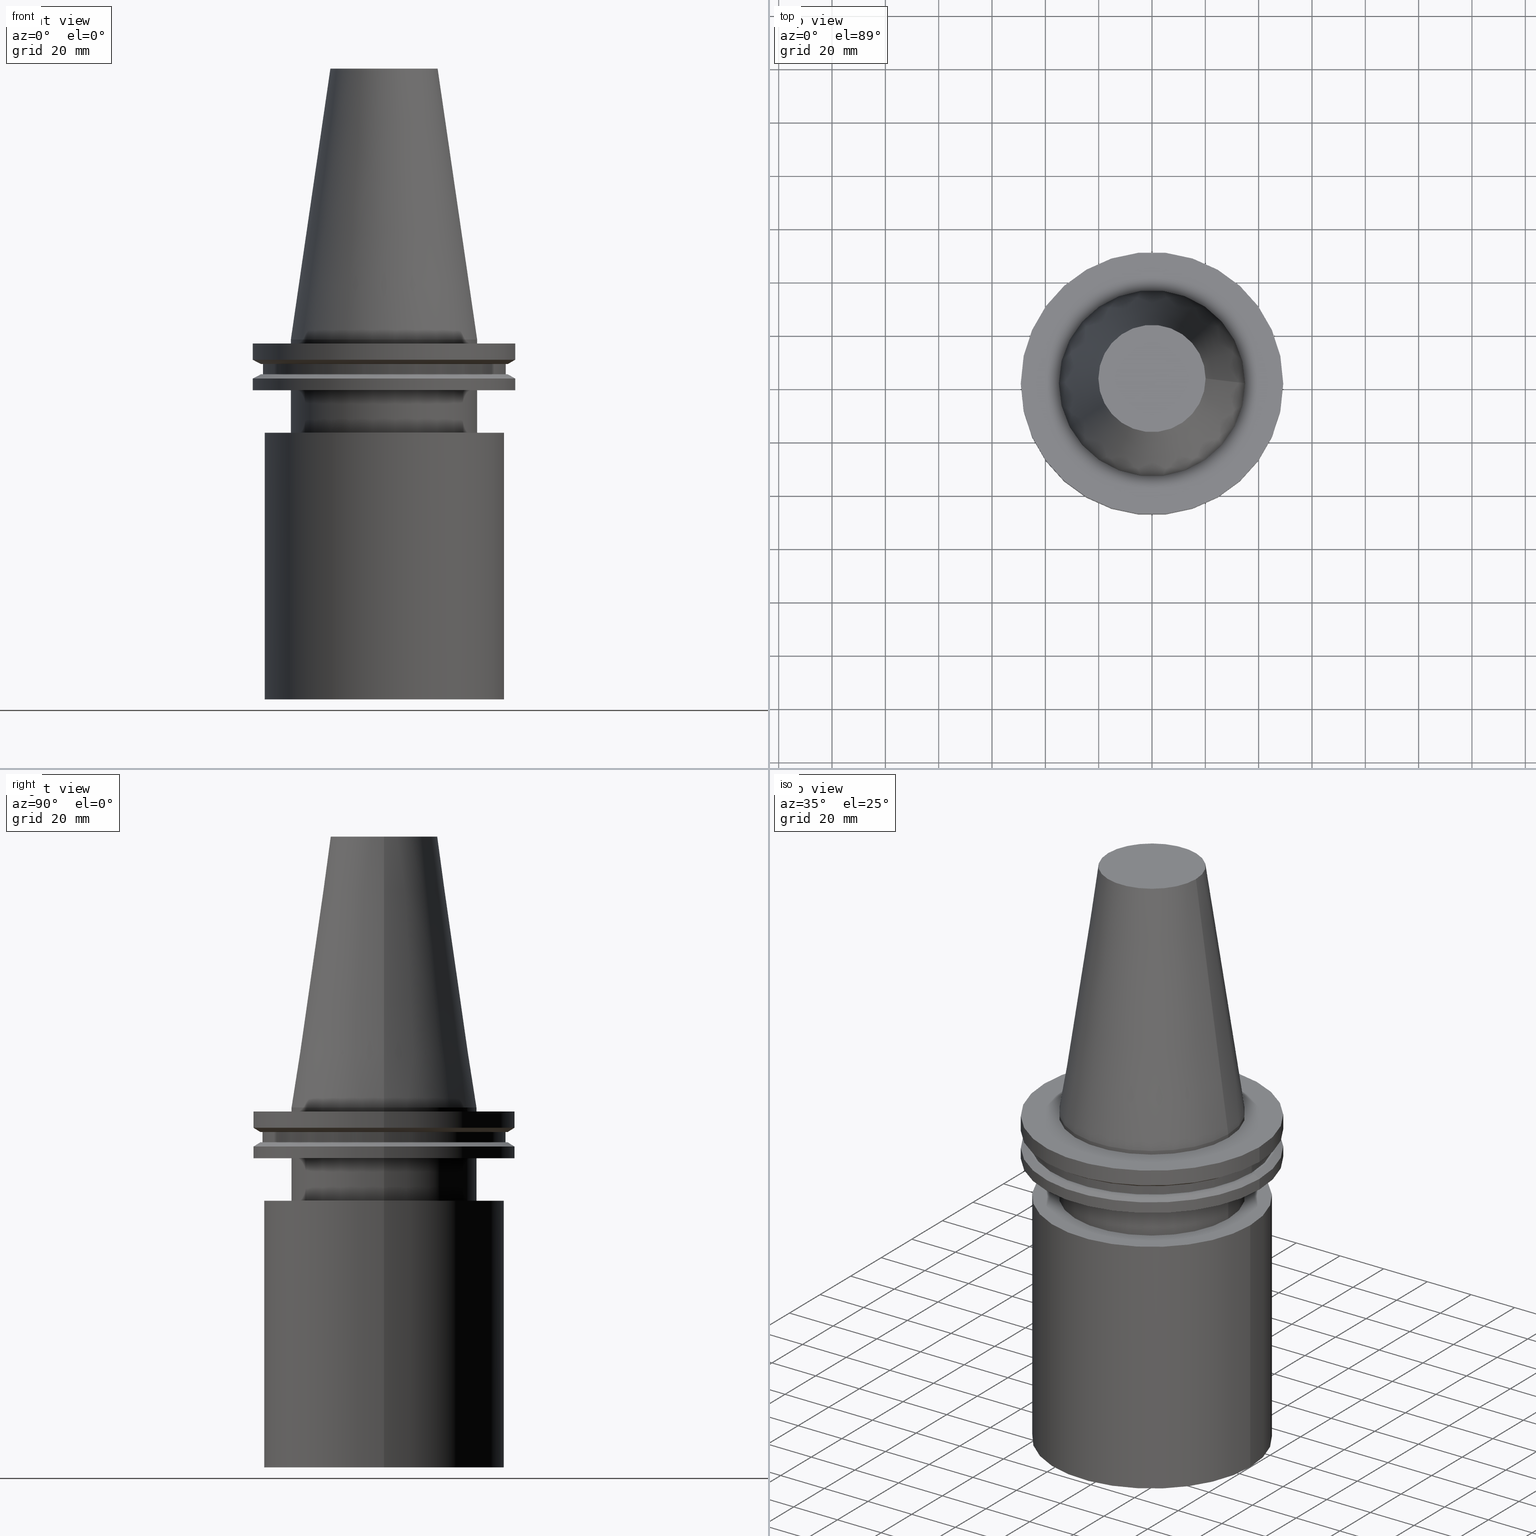
[diagram: canonical four-view strip — front | top / right | iso, engineering-drawing reading convention]
A machine part, canonical four-view strip (front | top / right | iso — engineering-drawing reading convention). The complete STEP part file that produces these views, byte-faithful:
ISO-10303-21;
HEADER;
FILE_DESCRIPTION (( 'STEP AP203' ),
    '1' );
FILE_NAME ('11.326.675.stp',
    '2022-03-09T15:00:51',
    ( '' ),
    ( '' ),
    'SwSTEP 2.0',
    'SolidWorks 2021',
    '' );
FILE_SCHEMA (( 'CONFIG_CONTROL_DESIGN' ));
ENDSEC;

DATA;
#1 = CC_DESIGN_DATE_AND_TIME_ASSIGNMENT ( #344, #96, ( #55 ) ) ;
#2 = ORIENTED_EDGE ( 'NONE', *, *, #246, .F. ) ;
#3 = DIRECTION ( 'NONE',  ( 1.000000000000000000, 0.000000000000000000, 0.000000000000000000 ) ) ;
#4 = DIRECTION ( 'NONE',  ( 0.000000000000000000, 0.000000000000000000, -1.000000000000000000 ) ) ;
#5 = CONICAL_SURFACE ( 'NONE', #349, 34.92499999999999005, 0.1448138465474119452 ) ;
#6 = EDGE_CURVE ( 'NONE', #244, #244, #147, .T. ) ;
#7 = FACE_OUTER_BOUND ( 'NONE', #206, .T. ) ;
#8 = ORIENTED_EDGE ( 'NONE', *, *, #92, .T. ) ;
#9 = DIRECTION ( 'NONE',  ( 1.000000000000000000, 0.000000000000000000, 0.000000000000000000 ) ) ;
#10 = DIRECTION ( 'NONE',  ( -0.000000000000000000, -0.000000000000000000, 1.000000000000000000 ) ) ;
#11 = DIRECTION ( 'NONE',  ( 0.000000000000000000, 0.000000000000000000, -1.000000000000000000 ) ) ;
#12 = DIRECTION ( 'NONE',  ( 1.000000000000000000, 0.000000000000000000, 0.000000000000000000 ) ) ;
#13 = DIRECTION ( 'NONE',  ( -1.000000000000000000, 0.000000000000000000, -0.000000000000000000 ) ) ;
#14 = EDGE_LOOP ( 'NONE', ( #22 ) ) ;
#15 = CARTESIAN_POINT ( 'NONE',  ( 0.000000000000000000, 0.000000000000000000, -1.499999999999987566 ) ) ;
#16 = ORIENTED_EDGE ( 'NONE', *, *, #92, .F. ) ;
#17 = AXIS2_PLACEMENT_3D ( 'NONE', #118, #212, #82 ) ;
#18 = CARTESIAN_POINT ( 'NONE',  ( 0.000000000000000000, 0.000000000000000000, -19.04999999999999716 ) ) ;
#19 = ORIENTED_EDGE ( 'NONE', *, *, #173, .T. ) ;
#20 = APPLICATION_CONTEXT ( 'configuration controlled 3d designs of mechanical parts and assemblies' ) ;
#21 = CARTESIAN_POINT ( 'NONE',  ( 20.10819343178871321, 0.000000000000000000, 101.5999999999999801 ) ) ;
#22 = ORIENTED_EDGE ( 'NONE', *, *, #38, .F. ) ;
#23 = VERTEX_POINT ( 'NONE', #391 ) ;
#24 = PERSON ( 'UNSPECIFIED', 'UNSPECIFIED', 'UNSPECIFIED', ('UNSPECIFIED'), ('UNSPECIFIED'), ('UNSPECIFIED') ) ;
#25 = ADVANCED_FACE ( 'NONE', ( #306, #249 ), #5, .T. ) ;
#26 = AXIS2_PLACEMENT_3D ( 'NONE', #15, #271, #115 ) ;
#27 = CARTESIAN_POINT ( 'NONE',  ( 45.64500000000000313, 0.000000000000000000, -13.05499999999999794 ) ) ;
#28 = CARTESIAN_POINT ( 'NONE',  ( 34.92499999999999716, 0.000000000000000000, -35.00000000000000000 ) ) ;
#29 = PLANE ( 'NONE',  #71 ) ;
#30 = VERTEX_POINT ( 'NONE', #280 ) ;
#31 = AXIS2_PLACEMENT_3D ( 'NONE', #313, #34, #389 ) ;
#32 = PRODUCT_DEFINITION_FORMATION_WITH_SPECIFIED_SOURCE ( 'ANY', '', #378, .NOT_KNOWN. ) ;
#33 = CC_DESIGN_PERSON_AND_ORGANIZATION_ASSIGNMENT ( #159, #231, ( #55 ) ) ;
#34 = DIRECTION ( 'NONE',  ( 0.000000000000000000, -0.000000000000000000, 1.000000000000000000 ) ) ;
#35 = ORIENTED_EDGE ( 'NONE', *, *, #6, .F. ) ;
#36 = APPROVAL_ROLE ( '' ) ;
#37 = FACE_OUTER_BOUND ( 'NONE', #301, .T. ) ;
#38 = EDGE_CURVE ( 'NONE', #305, #305, #106, .T. ) ;
#39 = FACE_OUTER_BOUND ( 'NONE', #245, .T. ) ;
#40 = CIRCLE ( 'NONE', #368, 49.21500000000000341 ) ;
#41 = DIRECTION ( 'NONE',  ( 1.000000000000000000, 0.000000000000000000, 0.000000000000000000 ) ) ;
#42 = CARTESIAN_POINT ( 'NONE',  ( 0.000000000000000000, 0.000000000000000000, -13.05499999999999794 ) ) ;
#43 = ORIENTED_EDGE ( 'NONE', *, *, #366, .T. ) ;
#44 = DIRECTION ( 'NONE',  ( -0.000000000000000000, -0.000000000000000000, 1.000000000000000000 ) ) ;
#45 = DIRECTION ( 'NONE',  ( 0.000000000000000000, 0.000000000000000000, -1.000000000000000000 ) ) ;
#46 = CIRCLE ( 'NONE', #194, 45.64500000000000313 ) ;
#47 = ORGANIZATION ( 'UNSPECIFIED', 'UNSPECIFIED', '' ) ;
#48 = CARTESIAN_POINT ( 'NONE',  ( 0.000000000000000000, 0.000000000000000000, 101.5999999999999943 ) ) ;
#49 = ORIENTED_EDGE ( 'NONE', *, *, #153, .T. ) ;
#50 = FACE_OUTER_BOUND ( 'NONE', #120, .T. ) ;
#51 = EDGE_LOOP ( 'NONE', ( #117 ) ) ;
#52 = EDGE_CURVE ( 'NONE', #238, #238, #40, .T. ) ;
#53 = FACE_OUTER_BOUND ( 'NONE', #150, .T. ) ;
#54 = EDGE_LOOP ( 'NONE', ( #177 ) ) ;
#55 = SECURITY_CLASSIFICATION ( '', '', #315 ) ;
#56 = CARTESIAN_POINT ( 'NONE',  ( 45.64500000000000313, 0.000000000000000000, -9.204999999999991189 ) ) ;
#57 = CARTESIAN_POINT ( 'NONE',  ( 0.000000000000000000, 0.000000000000000000, 0.000000000000000000 ) ) ;
#58 = ADVANCED_FACE ( 'NONE', ( #141, #384 ), #29, .F. ) ;
#59 = VERTEX_POINT ( 'NONE', #278 ) ;
#60 = AXIS2_PLACEMENT_3D ( 'NONE', #160, #372, #9 ) ;
#61 = EDGE_LOOP ( 'NONE', ( #217 ) ) ;
#62 = PERSON_AND_ORGANIZATION ( #24, #47 ) ;
#63 = DIRECTION ( 'NONE',  ( 1.000000000000000000, 0.000000000000000000, 0.000000000000000000 ) ) ;
#64 = AXIS2_PLACEMENT_3D ( 'NONE', #48, #300, #297 ) ;
#65 = FACE_OUTER_BOUND ( 'NONE', #116, .T. ) ;
#66 = APPROVAL_STATUS ( 'not_yet_approved' ) ;
#67 = CARTESIAN_POINT ( 'NONE',  ( 0.000000000000000000, 0.000000000000000000, -19.04999999999999716 ) ) ;
#68 = ADVANCED_FACE ( 'NONE', ( #377, #343 ), #243, .T. ) ;
#69 = CYLINDRICAL_SURFACE ( 'NONE', #283, 34.92499999999999716 ) ;
#70 = CYLINDRICAL_SURFACE ( 'NONE', #386, 45.00000000000000000 ) ;
#71 = AXIS2_PLACEMENT_3D ( 'NONE', #167, #285, #94 ) ;
#72 = PRODUCT_DEFINITION_SHAPE ( 'NONE', 'NONE',  #299 ) ;
#73 = PLANE ( 'NONE',  #77 ) ;
#74 = CC_DESIGN_DATE_AND_TIME_ASSIGNMENT ( #88, #310, ( #299 ) ) ;
#75 = CARTESIAN_POINT ( 'NONE',  ( 0.000000000000000000, 46.43919780457007818, -9.204999999999998295 ) ) ;
#76 = CARTESIAN_POINT ( 'NONE',  ( 0.000000000000000000, 0.000000000000000000, 101.5999999999999943 ) ) ;
#77 = AXIS2_PLACEMENT_3D ( 'NONE', #232, #322, #3 ) ;
#78 = APPROVAL_PERSON_ORGANIZATION ( #364, #282, #221 ) ;
#79 = FACE_OUTER_BOUND ( 'NONE', #143, .T. ) ;
#80 = ORIENTED_EDGE ( 'NONE', *, *, #321, .T. ) ;
#81 = ORIENTED_EDGE ( 'NONE', *, *, #38, .T. ) ;
#82 = DIRECTION ( 'NONE',  ( 1.000000000000000000, 0.000000000000000000, 0.000000000000000000 ) ) ;
#83 = EDGE_LOOP ( 'NONE', ( #193 ) ) ;
#84 = FACE_BOUND ( 'NONE', #83, .T. ) ;
#85 = EDGE_LOOP ( 'NONE', ( #134 ) ) ;
#86 = ORIENTED_EDGE ( 'NONE', *, *, #214, .F. ) ;
#87 = AXIS2_PLACEMENT_3D ( 'NONE', #75, #145, #356 ) ;
#88 = DATE_AND_TIME ( #192, #100 ) ;
#89 = APPROVAL_STATUS ( 'not_yet_approved' ) ;
#90 = CIRCLE ( 'NONE', #218, 34.92499999999999716 ) ;
#91 = APPLICATION_PROTOCOL_DEFINITION ( 'international standard', 'config_control_design', 1994, #95 ) ;
#92 = EDGE_CURVE ( 'NONE', #204, #204, #90, .T. ) ;
#93 = APPLICATION_PROTOCOL_DEFINITION ( 'international standard', 'config_control_design', 1994, #20 ) ;
#94 = DIRECTION ( 'NONE',  ( -1.000000000000000000, 0.000000000000000000, -0.000000000000000000 ) ) ;
#95 = APPLICATION_CONTEXT ( 'configuration controlled 3d designs of mechanical parts and assemblies' ) ;
#96 = DATE_TIME_ROLE ( 'classification_date' ) ;
#97 = CIRCLE ( 'NONE', #17, 46.43919780457007818 ) ;
#98 = EDGE_CURVE ( 'NONE', #338, #338, #279, .T. ) ;
#99 = DIRECTION ( 'NONE',  ( 1.000000000000000000, 0.000000000000000000, 0.000000000000000000 ) ) ;
#100 = LOCAL_TIME ( 9, 0, 51.00000000000000000, #341 ) ;
#101 = CARTESIAN_POINT ( 'NONE',  ( 0.000000000000000000, 0.000000000000000000, 101.5999999999999943 ) ) ;
#102 = PERSON_AND_ORGANIZATION ( #24, #47 ) ;
#103 = DIRECTION ( 'NONE',  ( 1.000000000000000000, 0.000000000000000000, 0.000000000000000000 ) ) ;
#104 = COORDINATED_UNIVERSAL_TIME_OFFSET ( 6, 0, .BEHIND. ) ;
#105 = DIRECTION ( 'NONE',  ( -0.000000000000000000, -0.000000000000000000, 1.000000000000000000 ) ) ;
#106 = CIRCLE ( 'NONE', #181, 20.10819343178871321 ) ;
#107 = EDGE_LOOP ( 'NONE', ( #8 ) ) ;
#108 = ADVANCED_FACE ( 'NONE', ( #203, #292 ), #138, .T. ) ;
#109 = DIRECTION ( 'NONE',  ( -0.000000000000000000, -0.000000000000000000, 1.000000000000000000 ) ) ;
#110 = DIRECTION ( 'NONE',  ( -1.000000000000000000, 0.000000000000000000, -0.000000000000000000 ) ) ;
#111 = EDGE_LOOP ( 'NONE', ( #185 ) ) ;
#112 = DIRECTION ( 'NONE',  ( -0.000000000000000000, -0.000000000000000000, 1.000000000000000000 ) ) ;
#113 = APPROVAL_PERSON_ORGANIZATION ( #200, #336, #234 ) ;
#114 = ADVANCED_FACE ( 'NONE', ( #290, #37 ), #131, .F. ) ;
#115 = DIRECTION ( 'NONE',  ( 1.000000000000000000, 0.000000000000000000, 0.000000000000000000 ) ) ;
#116 = EDGE_LOOP ( 'NONE', ( #296 ) ) ;
#117 = ORIENTED_EDGE ( 'NONE', *, *, #277, .T. ) ;
#118 = CARTESIAN_POINT ( 'NONE',  ( 0.000000000000000000, 0.000000000000000000, -9.204999999999991189 ) ) ;
#119 = DIRECTION ( 'NONE',  ( 1.000000000000000000, 0.000000000000000000, 0.000000000000000000 ) ) ;
#120 = EDGE_LOOP ( 'NONE', ( #272 ) ) ;
#121 = VERTEX_POINT ( 'NONE', #225 ) ;
#122 = DIRECTION ( 'NONE',  ( 1.000000000000000000, 0.000000000000000000, 0.000000000000000000 ) ) ;
#123 = MECHANICAL_CONTEXT ( 'NONE', #20, 'mechanical' ) ;
#124 = ADVANCED_FACE ( 'NONE', ( #136 ), #73, .F. ) ;
#125 = CLOSED_SHELL ( 'NONE', ( #25, #294, #137, #199, #108, #166, #205, #353, #314, #68, #254, #58, #382, #114, #189, #124 ) ) ;
#126 = AXIS2_PLACEMENT_3D ( 'NONE', #303, #44, #381 ) ;
#127 = EDGE_CURVE ( 'NONE', #59, #59, #325, .T. ) ;
#128 = DIRECTION ( 'NONE',  ( -0.000000000000000000, -0.000000000000000000, 1.000000000000000000 ) ) ;
#129 = SHAPE_DEFINITION_REPRESENTATION ( #72, #196 ) ;
#130 = AXIS2_PLACEMENT_3D ( 'NONE', #201, #379, #345 ) ;
#131 = PLANE ( 'NONE',  #130 ) ;
#132 = DATE_AND_TIME ( #260, #334 ) ;
#133 = DIRECTION ( 'NONE',  ( -1.000000000000000000, 0.000000000000000000, 0.000000000000000000 ) ) ;
#134 = ORIENTED_EDGE ( 'NONE', *, *, #98, .F. ) ;
#135 = DATE_AND_TIME ( #165, #318 ) ;
#136 = FACE_OUTER_BOUND ( 'NONE', #61, .T. ) ;
#137 = ADVANCED_FACE ( 'NONE', ( #7, #198 ), #69, .T. ) ;
#138 = CYLINDRICAL_SURFACE ( 'NONE', #289, 49.21499999999998920 ) ;
#139 = LOCAL_TIME ( 9, 0, 51.00000000000000000, #224 ) ;
#140 = DIRECTION ( 'NONE',  ( 0.000000000000000000, 0.000000000000000000, -1.000000000000000000 ) ) ;
#141 = FACE_BOUND ( 'NONE', #111, .T. ) ;
#142 = DIRECTION ( 'NONE',  ( -0.000000000000000000, -0.000000000000000000, 1.000000000000000000 ) ) ;
#143 = EDGE_LOOP ( 'NONE', ( #179 ) ) ;
#144 = EDGE_LOOP ( 'NONE', ( #211 ) ) ;
#145 = DIRECTION ( 'NONE',  ( 0.000000000000000000, -0.000000000000000000, 1.000000000000000000 ) ) ;
#146 = EDGE_LOOP ( 'NONE', ( #35 ) ) ;
#147 = CIRCLE ( 'NONE', #259, 45.64500000000000313 ) ;
#148 = DIRECTION ( 'NONE',  ( 1.000000000000000000, 0.000000000000000000, 0.000000000000000000 ) ) ;
#149 = EDGE_LOOP ( 'NONE', ( #291 ) ) ;
#150 = EDGE_LOOP ( 'NONE', ( #19 ) ) ;
#151 = CARTESIAN_POINT ( 'NONE',  ( 0.000000000000000000, 0.000000000000000000, -35.00000000000000000 ) ) ;
#152 = DIRECTION ( 'NONE',  ( -1.000000000000000000, 0.000000000000000000, 0.000000000000000000 ) ) ;
#153 = EDGE_CURVE ( 'NONE', #23, #23, #355, .T. ) ;
#154 =( NAMED_UNIT ( * ) SI_UNIT ( $, .STERADIAN. ) SOLID_ANGLE_UNIT ( ) );
#155 = AXIS2_PLACEMENT_3D ( 'NONE', #358, #140, #13 ) ;
#156 = DATE_AND_TIME ( #309, #139 ) ;
#157 = PRODUCT_RELATED_PRODUCT_CATEGORY ( 'detail', '', ( #378 ) ) ;
#158 = CIRCLE ( 'NONE', #162, 46.43919780457007818 ) ;
#159 = PERSON_AND_ORGANIZATION ( #24, #47 ) ;
#160 = CARTESIAN_POINT ( 'NONE',  ( 0.000000000000000000, 0.000000000000000000, -135.0000000000000000 ) ) ;
#161 = CC_DESIGN_APPROVAL ( #336, ( #55 ) ) ;
#162 = AXIS2_PLACEMENT_3D ( 'NONE', #42, #262, #103 ) ;
#163 = DIRECTION ( 'NONE',  ( -0.000000000000000000, -0.000000000000000000, 1.000000000000000000 ) ) ;
#164 = EDGE_LOOP ( 'NONE', ( #268 ) ) ;
#165 = CALENDAR_DATE ( 2022, 9, 3 ) ;
#166 = ADVANCED_FACE ( 'NONE', ( #230, #39 ), #188, .T. ) ;
#167 = CARTESIAN_POINT ( 'NONE',  ( 0.000000000000000000, 49.21499999999999631, -1.499999999999992895 ) ) ;
#168 = MANIFOLD_SOLID_BREP ( 'CKB', #125 ) ;
#169 = DIRECTION ( 'NONE',  ( -0.000000000000000000, -0.000000000000000000, 1.000000000000000000 ) ) ;
#170 = CC_DESIGN_SECURITY_CLASSIFICATION ( #55, ( #32 ) ) ;
#171 = DIRECTION ( 'NONE',  ( 1.000000000000000000, 0.000000000000000000, 0.000000000000000000 ) ) ;
#172 = ORIENTED_EDGE ( 'NONE', *, *, #6, .T. ) ;
#173 = EDGE_CURVE ( 'NONE', #337, #337, #158, .T. ) ;
#174 = CYLINDRICAL_SURFACE ( 'NONE', #361, 45.64500000000000313 ) ;
#175 = EDGE_LOOP ( 'NONE', ( #180 ) ) ;
#176 = FACE_OUTER_BOUND ( 'NONE', #146, .T. ) ;
#177 = ORIENTED_EDGE ( 'NONE', *, *, #226, .T. ) ;
#178 = CARTESIAN_POINT ( 'NONE',  ( 0.000000000000000000, 0.000000000000000000, -1.499999999999987566 ) ) ;
#179 = ORIENTED_EDGE ( 'NONE', *, *, #394, .T. ) ;
#180 = ORIENTED_EDGE ( 'NONE', *, *, #52, .F. ) ;
#181 = AXIS2_PLACEMENT_3D ( 'NONE', #276, #392, #122 ) ;
#182 = APPROVAL_PERSON_ORGANIZATION ( #335, #233, #36 ) ;
#183 = DIRECTION ( 'NONE',  ( 1.000000000000000000, 0.000000000000000000, 0.000000000000000000 ) ) ;
#184 = CC_DESIGN_PERSON_AND_ORGANIZATION_ASSIGNMENT ( #374, #236, ( #32 ) ) ;
#185 = ORIENTED_EDGE ( 'NONE', *, *, #394, .F. ) ;
#186 = PERSON_AND_ORGANIZATION_ROLE ( 'design_owner' ) ;
#187 = VERTEX_POINT ( 'NONE', #250 ) ;
#188 = CONICAL_SURFACE ( 'NONE', #339, 49.21499999999998920, 1.047197551196554333 ) ;
#189 = ADVANCED_FACE ( 'NONE', ( #235, #348 ), #70, .T. ) ;
#190 = VERTEX_POINT ( 'NONE', #369 ) ;
#191 = PERSON_AND_ORGANIZATION_ROLE ( 'creator' ) ;
#192 = CALENDAR_DATE ( 2022, 9, 3 ) ;
#193 = ORIENTED_EDGE ( 'NONE', *, *, #366, .F. ) ;
#194 = AXIS2_PLACEMENT_3D ( 'NONE', #269, #142, #148 ) ;
#195 = PLANE ( 'NONE',  #31 ) ;
#196 = ADVANCED_BREP_SHAPE_REPRESENTATION ( '11.326.675', ( #168, #219 ), #229 ) ;
#197 = DIRECTION ( 'NONE',  ( -0.000000000000000000, -0.000000000000000000, 1.000000000000000000 ) ) ;
#198 = FACE_OUTER_BOUND ( 'NONE', #388, .T. ) ;
#199 = ADVANCED_FACE ( 'NONE', ( #65, #293 ), #195, .F. ) ;
#200 = PERSON_AND_ORGANIZATION ( #24, #47 ) ;
#201 = CARTESIAN_POINT ( 'NONE',  ( 0.000000000000000000, 0.000000000000000000, -35.00000000000000000 ) ) ;
#202 = COORDINATED_UNIVERSAL_TIME_OFFSET ( 6, 0, .BEHIND. ) ;
#203 = FACE_OUTER_BOUND ( 'NONE', #324, .T. ) ;
#204 = VERTEX_POINT ( 'NONE', #307 ) ;
#205 = ADVANCED_FACE ( 'NONE', ( #84, #53 ), #295, .F. ) ;
#206 = EDGE_LOOP ( 'NONE', ( #16 ) ) ;
#207 = DIRECTION ( 'NONE',  ( 1.000000000000000000, 0.000000000000000000, 0.000000000000000000 ) ) ;
#208 = CIRCLE ( 'NONE', #126, 34.92499999999999005 ) ;
#209 = EDGE_LOOP ( 'NONE', ( #43 ) ) ;
#210 = FACE_OUTER_BOUND ( 'NONE', #240, .T. ) ;
#211 = ORIENTED_EDGE ( 'NONE', *, *, #52, .T. ) ;
#212 = DIRECTION ( 'NONE',  ( -0.000000000000000000, -0.000000000000000000, 1.000000000000000000 ) ) ;
#213 = EDGE_LOOP ( 'NONE', ( #241 ) ) ;
#214 = EDGE_CURVE ( 'NONE', #30, #30, #380, .T. ) ;
#215 = CYLINDRICAL_SURFACE ( 'NONE', #304, 49.21499999999999631 ) ;
#216 = EDGE_LOOP ( 'NONE', ( #2 ) ) ;
#217 = ORIENTED_EDGE ( 'NONE', *, *, #127, .F. ) ;
#218 = AXIS2_PLACEMENT_3D ( 'NONE', #67, #128, #350 ) ;
#219 = AXIS2_PLACEMENT_3D ( 'NONE', #220, #365, #63 ) ;
#220 = CARTESIAN_POINT ( 'NONE',  ( 0.000000000000000000, 0.000000000000000000, 0.000000000000000000 ) ) ;
#221 = APPROVAL_ROLE ( '' ) ;
#222 = LOCAL_TIME ( 9, 0, 51.00000000000000000, #202 ) ;
#223 = AXIS2_PLACEMENT_3D ( 'NONE', #360, #11, #110 ) ;
#224 = COORDINATED_UNIVERSAL_TIME_OFFSET ( 6, 0, .BEHIND. ) ;
#225 = CARTESIAN_POINT ( 'NONE',  ( 45.00000000000000000, 0.000000000000000000, -35.00000000000000000 ) ) ;
#226 = EDGE_CURVE ( 'NONE', #253, #253, #97, .T. ) ;
#227 = CARTESIAN_POINT ( 'NONE',  ( 0.000000000000000000, 0.000000000000000000, -14.65761014474876944 ) ) ;
#228 = AXIS2_PLACEMENT_3D ( 'NONE', #237, #10, #258 ) ;
#229 =( GEOMETRIC_REPRESENTATION_CONTEXT ( 3 ) GLOBAL_UNCERTAINTY_ASSIGNED_CONTEXT ( ( #248 ) ) GLOBAL_UNIT_ASSIGNED_CONTEXT ( ( #393, #362, #154 ) ) REPRESENTATION_CONTEXT ( 'NONE', 'WORKASPACE' ) );
#230 = FACE_BOUND ( 'NONE', #149, .T. ) ;
#231 = PERSON_AND_ORGANIZATION_ROLE ( 'classification_officer' ) ;
#232 = CARTESIAN_POINT ( 'NONE',  ( 0.000000000000000000, 45.00000000000000000, -135.0000000000000000 ) ) ;
#233 = APPROVAL ( #370, 'UNSPECIFIED' ) ;
#234 = APPROVAL_ROLE ( '' ) ;
#235 = FACE_OUTER_BOUND ( 'NONE', #216, .T. ) ;
#236 = PERSON_AND_ORGANIZATION_ROLE ( 'creator' ) ;
#237 = CARTESIAN_POINT ( 'NONE',  ( 0.000000000000000000, 0.000000000000000000, -35.00000000000000000 ) ) ;
#238 = VERTEX_POINT ( 'NONE', #351 ) ;
#239 = DIRECTION ( 'NONE',  ( 1.000000000000000000, 0.000000000000000000, 0.000000000000000000 ) ) ;
#240 = EDGE_LOOP ( 'NONE', ( #86 ) ) ;
#241 = ORIENTED_EDGE ( 'NONE', *, *, #277, .F. ) ;
#242 = DIRECTION ( 'NONE',  ( -0.000000000000000000, -0.000000000000000000, 1.000000000000000000 ) ) ;
#243 = CONICAL_SURFACE ( 'NONE', #342, 46.43919780457007818, 1.047197551196575205 ) ;
#244 = VERTEX_POINT ( 'NONE', #56 ) ;
#245 = EDGE_LOOP ( 'NONE', ( #49 ) ) ;
#246 = EDGE_CURVE ( 'NONE', #121, #121, #373, .T. ) ;
#247 = FACE_OUTER_BOUND ( 'NONE', #144, .T. ) ;
#248 = UNCERTAINTY_MEASURE_WITH_UNIT (LENGTH_MEASURE( 1.000000000000000082E-05 ), #393, 'distance_accuracy_value', 'NONE');
#249 = FACE_OUTER_BOUND ( 'NONE', #51, .T. ) ;
#250 = CARTESIAN_POINT ( 'NONE',  ( 49.21499999999998920, 0.000000000000000000, -19.04999999999999716 ) ) ;
#251 = CARTESIAN_POINT ( 'NONE',  ( 0.000000000000000000, 0.000000000000000000, -7.602389855251287187 ) ) ;
#252 = AXIS2_PLACEMENT_3D ( 'NONE', #227, #163, #317 ) ;
#253 = VERTEX_POINT ( 'NONE', #275 ) ;
#254 = ADVANCED_FACE ( 'NONE', ( #210, #247 ), #215, .T. ) ;
#255 = VERTEX_POINT ( 'NONE', #308 ) ;
#256 = AXIS2_PLACEMENT_3D ( 'NONE', #18, #385, #239 ) ;
#257 = CC_DESIGN_PERSON_AND_ORGANIZATION_ASSIGNMENT ( #102, #312, ( #32 ) ) ;
#258 = DIRECTION ( 'NONE',  ( 1.000000000000000000, 0.000000000000000000, 0.000000000000000000 ) ) ;
#259 = AXIS2_PLACEMENT_3D ( 'NONE', #274, #390, #119 ) ;
#260 = CALENDAR_DATE ( 2022, 9, 3 ) ;
#261 = DIRECTION ( 'NONE',  ( 1.000000000000000000, 0.000000000000000000, 0.000000000000000000 ) ) ;
#262 = DIRECTION ( 'NONE',  ( -0.000000000000000000, -0.000000000000000000, 1.000000000000000000 ) ) ;
#263 = CARTESIAN_POINT ( 'NONE',  ( 0.000000000000000000, 0.000000000000000000, -9.204999999999991189 ) ) ;
#264 = AXIS2_PLACEMENT_3D ( 'NONE', #151, #242, #183 ) ;
#265 = CC_DESIGN_APPROVAL ( #233, ( #32 ) ) ;
#266 = DIRECTION ( 'NONE',  ( 1.000000000000000000, 0.000000000000000000, 0.000000000000000000 ) ) ;
#267 = CARTESIAN_POINT ( 'NONE',  ( 0.000000000000000000, 0.000000000000000000, 101.5999999999999943 ) ) ;
#268 = ORIENTED_EDGE ( 'NONE', *, *, #214, .T. ) ;
#269 = CARTESIAN_POINT ( 'NONE',  ( 0.000000000000000000, 0.000000000000000000, -13.05499999999999794 ) ) ;
#270 = ORIENTED_EDGE ( 'NONE', *, *, #127, .T. ) ;
#271 = DIRECTION ( 'NONE',  ( -0.000000000000000000, -0.000000000000000000, 1.000000000000000000 ) ) ;
#272 = ORIENTED_EDGE ( 'NONE', *, *, #226, .F. ) ;
#273 = FACE_OUTER_BOUND ( 'NONE', #213, .T. ) ;
#274 = CARTESIAN_POINT ( 'NONE',  ( 0.000000000000000000, 0.000000000000000000, -9.204999999999991189 ) ) ;
#275 = CARTESIAN_POINT ( 'NONE',  ( 46.43919780457007818, 0.000000000000000000, -9.204999999999991189 ) ) ;
#276 = CARTESIAN_POINT ( 'NONE',  ( 0.000000000000000000, 0.000000000000000000, 101.5999999999999801 ) ) ;
#277 = EDGE_CURVE ( 'NONE', #255, #255, #208, .T. ) ;
#278 = CARTESIAN_POINT ( 'NONE',  ( 45.00000000000000000, 0.000000000000000000, -135.0000000000000000 ) ) ;
#279 = CIRCLE ( 'NONE', #228, 34.92499999999999716 ) ;
#280 = CARTESIAN_POINT ( 'NONE',  ( 49.21499999999999631, 0.000000000000000000, -1.499999999999987566 ) ) ;
#281 = PERSON_AND_ORGANIZATION ( #24, #47 ) ;
#282 = APPROVAL ( #89, 'UNSPECIFIED' ) ;
#283 = AXIS2_PLACEMENT_3D ( 'NONE', #316, #375, #99 ) ;
#284 = CC_DESIGN_APPROVAL ( #282, ( #299 ) ) ;
#285 = DIRECTION ( 'NONE',  ( 0.000000000000000000, 0.000000000000000000, -1.000000000000000000 ) ) ;
#286 = APPROVAL_DATE_TIME ( #135, #336 ) ;
#287 = CC_DESIGN_PERSON_AND_ORGANIZATION_ASSIGNMENT ( #281, #186, ( #378 ) ) ;
#288 = CARTESIAN_POINT ( 'NONE',  ( 0.000000000000000000, 0.000000000000000000, -14.65761014474876944 ) ) ;
#289 = AXIS2_PLACEMENT_3D ( 'NONE', #101, #197, #261 ) ;
#290 = FACE_BOUND ( 'NONE', #85, .T. ) ;
#291 = ORIENTED_EDGE ( 'NONE', *, *, #173, .F. ) ;
#292 = FACE_OUTER_BOUND ( 'NONE', #354, .T. ) ;
#293 = FACE_BOUND ( 'NONE', #107, .T. ) ;
#294 = ADVANCED_FACE ( 'NONE', ( #333 ), #383, .F. ) ;
#295 = PLANE ( 'NONE',  #223 ) ;
#296 = ORIENTED_EDGE ( 'NONE', *, *, #321, .F. ) ;
#297 = DIRECTION ( 'NONE',  ( 1.000000000000000000, 0.000000000000000000, 0.000000000000000000 ) ) ;
#298 = DESIGN_CONTEXT ( 'detailed design', #95, 'design' ) ;
#299 = PRODUCT_DEFINITION ( 'UNKNOWN', '', #32, #298 ) ;
#300 = DIRECTION ( 'NONE',  ( -0.000000000000000000, -0.000000000000000000, 1.000000000000000000 ) ) ;
#301 = EDGE_LOOP ( 'NONE', ( #359 ) ) ;
#302 = CIRCLE ( 'NONE', #26, 34.92499999999999005 ) ;
#303 = CARTESIAN_POINT ( 'NONE',  ( 0.000000000000000000, 0.000000000000000000, 0.000000000000000000 ) ) ;
#304 = AXIS2_PLACEMENT_3D ( 'NONE', #267, #109, #387 ) ;
#305 = VERTEX_POINT ( 'NONE', #21 ) ;
#306 = FACE_BOUND ( 'NONE', #14, .T. ) ;
#307 = CARTESIAN_POINT ( 'NONE',  ( 34.92499999999999716, 0.000000000000000000, -19.04999999999999716 ) ) ;
#308 = CARTESIAN_POINT ( 'NONE',  ( 34.92499999999999005, 0.000000000000000000, 0.000000000000000000 ) ) ;
#309 = CALENDAR_DATE ( 2022, 9, 3 ) ;
#310 = DATE_TIME_ROLE ( 'creation_date' ) ;
#311 = CIRCLE ( 'NONE', #256, 49.21499999999998920 ) ;
#312 = PERSON_AND_ORGANIZATION_ROLE ( 'design_supplier' ) ;
#313 = CARTESIAN_POINT ( 'NONE',  ( 0.000000000000000000, 49.21499999999998920, -19.04999999999999716 ) ) ;
#314 = ADVANCED_FACE ( 'NONE', ( #50, #323 ), #329, .F. ) ;
#315 = SECURITY_CLASSIFICATION_LEVEL ( 'unclassified' ) ;
#316 = CARTESIAN_POINT ( 'NONE',  ( 0.000000000000000000, 0.000000000000000000, 101.5999999999999943 ) ) ;
#317 = DIRECTION ( 'NONE',  ( 1.000000000000000000, 0.000000000000000000, 0.000000000000000000 ) ) ;
#318 = LOCAL_TIME ( 9, 0, 51.00000000000000000, #347 ) ;
#319 = AXIS2_PLACEMENT_3D ( 'NONE', #178, #112, #171 ) ;
#320 = CARTESIAN_POINT ( 'NONE',  ( 0.000000000000000000, 0.000000000000000000, 0.000000000000000000 ) ) ;
#321 = EDGE_CURVE ( 'NONE', #187, #187, #311, .T. ) ;
#322 = DIRECTION ( 'NONE',  ( 0.000000000000000000, -0.000000000000000000, 1.000000000000000000 ) ) ;
#323 = FACE_BOUND ( 'NONE', #327, .T. ) ;
#324 = EDGE_LOOP ( 'NONE', ( #332 ) ) ;
#325 = CIRCLE ( 'NONE', #60, 45.00000000000000000 ) ;
#326 = CYLINDRICAL_SURFACE ( 'NONE', #64, 34.92499999999999005 ) ;
#327 = EDGE_LOOP ( 'NONE', ( #172 ) ) ;
#328 = CC_DESIGN_PERSON_AND_ORGANIZATION_ASSIGNMENT ( #62, #191, ( #299 ) ) ;
#329 = PLANE ( 'NONE',  #87 ) ;
#330 = EDGE_LOOP ( 'NONE', ( #270 ) ) ;
#331 = DIRECTION ( 'NONE',  ( -0.000000000000000000, -0.000000000000000000, 1.000000000000000000 ) ) ;
#332 = ORIENTED_EDGE ( 'NONE', *, *, #153, .F. ) ;
#333 = FACE_OUTER_BOUND ( 'NONE', #346, .T. ) ;
#334 = LOCAL_TIME ( 9, 0, 51.00000000000000000, #104 ) ;
#335 = PERSON_AND_ORGANIZATION ( #24, #47 ) ;
#336 = APPROVAL ( #66, 'UNSPECIFIED' ) ;
#337 = VERTEX_POINT ( 'NONE', #395 ) ;
#338 = VERTEX_POINT ( 'NONE', #28 ) ;
#339 = AXIS2_PLACEMENT_3D ( 'NONE', #288, #4, #133 ) ;
#340 = APPROVAL_DATE_TIME ( #156, #282 ) ;
#341 = COORDINATED_UNIVERSAL_TIME_OFFSET ( 6, 0, .BEHIND. ) ;
#342 = AXIS2_PLACEMENT_3D ( 'NONE', #263, #105, #266 ) ;
#343 = FACE_BOUND ( 'NONE', #54, .T. ) ;
#344 = DATE_AND_TIME ( #371, #222 ) ;
#345 = DIRECTION ( 'NONE',  ( -1.000000000000000000, 0.000000000000000000, -0.000000000000000000 ) ) ;
#346 = EDGE_LOOP ( 'NONE', ( #81 ) ) ;
#347 = COORDINATED_UNIVERSAL_TIME_OFFSET ( 6, 0, .BEHIND. ) ;
#348 = FACE_OUTER_BOUND ( 'NONE', #330, .T. ) ;
#349 = AXIS2_PLACEMENT_3D ( 'NONE', #57, #45, #152 ) ;
#350 = DIRECTION ( 'NONE',  ( 1.000000000000000000, 0.000000000000000000, 0.000000000000000000 ) ) ;
#351 = CARTESIAN_POINT ( 'NONE',  ( 49.21500000000000341, 0.000000000000000000, -7.602389855251287187 ) ) ;
#352 = FACE_OUTER_BOUND ( 'NONE', #209, .T. ) ;
#353 = ADVANCED_FACE ( 'NONE', ( #176, #352 ), #174, .T. ) ;
#354 = EDGE_LOOP ( 'NONE', ( #80 ) ) ;
#355 = CIRCLE ( 'NONE', #252, 49.21499999999998920 ) ;
#356 = DIRECTION ( 'NONE',  ( 1.000000000000000000, 0.000000000000000000, 0.000000000000000000 ) ) ;
#357 = ORIENTED_EDGE ( 'NONE', *, *, #98, .T. ) ;
#358 = CARTESIAN_POINT ( 'NONE',  ( 0.000000000000000000, 20.10819343178871321, 101.5999999999999943 ) ) ;
#359 = ORIENTED_EDGE ( 'NONE', *, *, #246, .T. ) ;
#360 = CARTESIAN_POINT ( 'NONE',  ( 0.000000000000000000, 45.64500000000000313, -13.05499999999999794 ) ) ;
#361 = AXIS2_PLACEMENT_3D ( 'NONE', #76, #331, #207 ) ;
#362 =( NAMED_UNIT ( * ) PLANE_ANGLE_UNIT ( ) SI_UNIT ( $, .RADIAN. ) );
#363 = DIRECTION ( 'NONE',  ( -0.000000000000000000, -0.000000000000000000, 1.000000000000000000 ) ) ;
#364 = PERSON_AND_ORGANIZATION ( #24, #47 ) ;
#365 = DIRECTION ( 'NONE',  ( 0.000000000000000000, 0.000000000000000000, 1.000000000000000000 ) ) ;
#366 = EDGE_CURVE ( 'NONE', #367, #367, #46, .T. ) ;
#367 = VERTEX_POINT ( 'NONE', #27 ) ;
#368 = AXIS2_PLACEMENT_3D ( 'NONE', #251, #363, #12 ) ;
#369 = CARTESIAN_POINT ( 'NONE',  ( 34.92499999999999005, 0.000000000000000000, -1.499999999999987566 ) ) ;
#370 = APPROVAL_STATUS ( 'not_yet_approved' ) ;
#371 = CALENDAR_DATE ( 2022, 9, 3 ) ;
#372 = DIRECTION ( 'NONE',  ( -0.000000000000000000, -0.000000000000000000, 1.000000000000000000 ) ) ;
#373 = CIRCLE ( 'NONE', #264, 45.00000000000000000 ) ;
#374 = PERSON_AND_ORGANIZATION ( #24, #47 ) ;
#375 = DIRECTION ( 'NONE',  ( -0.000000000000000000, -0.000000000000000000, 1.000000000000000000 ) ) ;
#376 = APPROVAL_DATE_TIME ( #132, #233 ) ;
#377 = FACE_OUTER_BOUND ( 'NONE', #175, .T. ) ;
#378 = PRODUCT ( '11.326.675', '11.326.675', '', ( #123 ) ) ;
#379 = DIRECTION ( 'NONE',  ( 0.000000000000000000, 0.000000000000000000, -1.000000000000000000 ) ) ;
#380 = CIRCLE ( 'NONE', #319, 49.21499999999999631 ) ;
#381 = DIRECTION ( 'NONE',  ( 1.000000000000000000, 0.000000000000000000, 0.000000000000000000 ) ) ;
#382 = ADVANCED_FACE ( 'NONE', ( #273, #79 ), #326, .T. ) ;
#383 = PLANE ( 'NONE',  #155 ) ;
#384 = FACE_OUTER_BOUND ( 'NONE', #164, .T. ) ;
#385 = DIRECTION ( 'NONE',  ( -0.000000000000000000, -0.000000000000000000, 1.000000000000000000 ) ) ;
#386 = AXIS2_PLACEMENT_3D ( 'NONE', #320, #169, #41 ) ;
#387 = DIRECTION ( 'NONE',  ( 1.000000000000000000, 0.000000000000000000, 0.000000000000000000 ) ) ;
#388 = EDGE_LOOP ( 'NONE', ( #357 ) ) ;
#389 = DIRECTION ( 'NONE',  ( 1.000000000000000000, 0.000000000000000000, 0.000000000000000000 ) ) ;
#390 = DIRECTION ( 'NONE',  ( -0.000000000000000000, -0.000000000000000000, 1.000000000000000000 ) ) ;
#391 = CARTESIAN_POINT ( 'NONE',  ( 49.21499999999998920, 0.000000000000000000, -14.65761014474876944 ) ) ;
#392 = DIRECTION ( 'NONE',  ( -0.000000000000000000, -0.000000000000000000, 1.000000000000000000 ) ) ;
#393 =( LENGTH_UNIT ( ) NAMED_UNIT ( * ) SI_UNIT ( .MILLI., .METRE. ) );
#394 = EDGE_CURVE ( 'NONE', #190, #190, #302, .T. ) ;
#395 = CARTESIAN_POINT ( 'NONE',  ( 46.43919780457007818, 0.000000000000000000, -13.05499999999999794 ) ) ;
ENDSEC;
END-ISO-10303-21;
